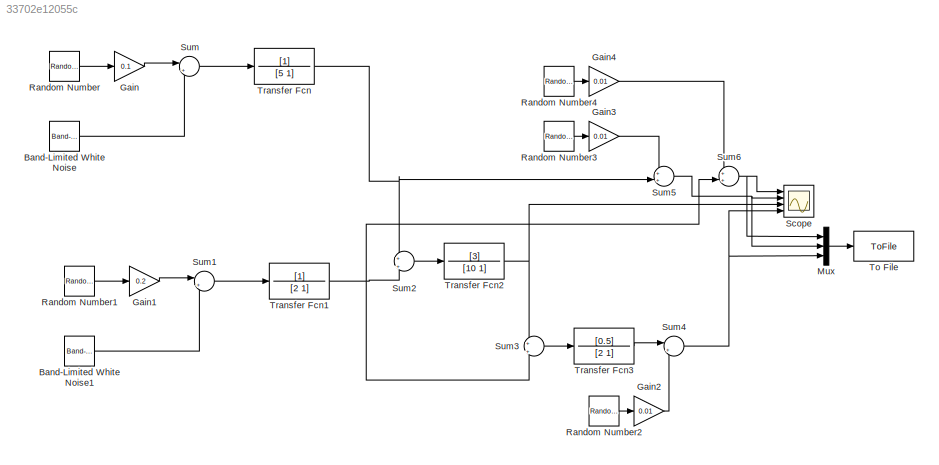
MODEL slx_33702e12055c
KIND model
CONFIG AbsTol = auto
CONFIG EnableMultiTasking = off
CONFIG FixedStep = auto
CONFIG MaxStep = auto
CONFIG MinStep = auto
CONFIG RelTol = 1e-3
CONFIG SampleTimeConstraint = Unconstrained
CONFIG SolverName = VariableStepAuto
CONFIG StartTime = 0.0
CONFIG StopTime = 100
BLOCK [Reference] Band-Limited White Noise  REF=simulink/Sources/Band-Limited
White Noise
  Ports = [0, 1]
  SourceBlock = simulink/Sources/Band-Limited\nWhite Noise
  SourceProductBaseCode = SL
  SourceType = Band-Limited White Noise.
BLOCK [Reference] Band-Limited White Noise1  REF=simulink/Sources/Band-Limited
White Noise
  Ports = [0, 1]
  SourceBlock = simulink/Sources/Band-Limited\nWhite Noise
  SourceProductBaseCode = SL
  SourceType = Band-Limited White Noise.
BLOCK [Gain] Gain
  Gain = 0.1
BLOCK [Gain] Gain1
  Gain = 0.2
BLOCK [Gain] Gain2
  Gain = 0.01
BLOCK [Gain] Gain3
  Gain = 0.01
BLOCK [Gain] Gain4
  Gain = 0.01
BLOCK [Mux] Mux
  DisplayOption = bar
  Inputs = 3
  Ports = [3, 1]
BLOCK [RandomNumber] Random Number
  SampleTime = 0.1
BLOCK [RandomNumber] Random Number1
  SampleTime = 0.1
BLOCK [RandomNumber] Random Number2
  SampleTime = 0.1
BLOCK [RandomNumber] Random Number3
  SampleTime = 0.1
BLOCK [RandomNumber] Random Number4
  SampleTime = 0.1
BLOCK [Scope] Scope
  Floating = off
  NumInputPorts = 4
  Ports = [4]
  ScopeSpecificationString = Simulink.scopes.TimeScopeBlockCfg('CurrentConfiguration', extmgr.ConfigurationSet(extmgr.Configuration('Core','General UI',true),extmgr.Configuration('Core','Source UI',true),extmgr.Configuration('Sources','WiredSimulink',true),extmgr.Configuration('Visuals','Time Domain',true,'SerializedDisplays',{struct('MinYLimReal','-0.62572','MaxYLimReal','0.60769','YLabelReal','','MinYLimMag','0.00000','MaxY...<+1385ch>
BLOCK [Sum] Sum
  Inputs = |++
  Ports = [2, 1]
BLOCK [Sum] Sum1
  Inputs = |++
  Ports = [2, 1]
BLOCK [Sum] Sum2
  Inputs = +|+
  Ports = [2, 1]
BLOCK [Sum] Sum3
  Inputs = +|+
  Ports = [2, 1]
BLOCK [Sum] Sum4
  Inputs = |++
  Ports = [2, 1]
BLOCK [Sum] Sum5
  Inputs = ++|
  Ports = [2, 1]
BLOCK [Sum] Sum6
  Inputs = ++|
  Ports = [2, 1]
BLOCK [ToFile] To File
  Filename = ProcessData_Simulink
  MatrixName = Measurements
  Ports = [1]
  SaveFormat = Timeseries
BLOCK [TransferFcn] Transfer Fcn
  Denominator = [5 1]
BLOCK [TransferFcn] Transfer Fcn1
  Denominator = [2 1]
BLOCK [TransferFcn] Transfer Fcn2
  Denominator = [10 1]
  Numerator = [3]
BLOCK [TransferFcn] Transfer Fcn3
  Denominator = [2 1]
  Numerator = [0.5]
LINE Band-Limited White Noise1:1 -> Sum1:2
LINE Band-Limited White Noise:1 -> Sum:2
LINE Gain1:1 -> Sum1:1
LINE Gain2:1 -> Sum4:2
LINE Gain3:1 -> Sum5:1
LINE Gain4:1 -> Sum6:1
LINE Gain:1 -> Sum:1
LINE Mux:1 -> To File:1
LINE Random Number1:1 -> Gain1:1
LINE Random Number2:1 -> Gain2:1
LINE Random Number3:1 -> Gain3:1
LINE Random Number4:1 -> Gain4:1
LINE Random Number:1 -> Gain:1
LINE Sum1:1 -> Transfer Fcn1:1
LINE Sum2:1 -> Transfer Fcn2:1
LINE Sum3:1 -> Transfer Fcn3:1
NET Sum4:1 -> Mux:3, Scope:4
NET Sum5:1 -> Mux:2, Scope:2
NET Sum6:1 -> Mux:1, Scope:1
LINE Sum:1 -> Transfer Fcn:1
NET Transfer Fcn1:1 -> Sum2:2, Sum3:2, Sum6:2
NET Transfer Fcn2:1 -> Scope:3, Sum3:1
LINE Transfer Fcn3:1 -> Sum4:1
NET Transfer Fcn:1 -> Sum2:1, Sum5:2
note: NET lines group one-source signal fan-out (src -> all destinations, sorted); 1:1 wires keep LINE
